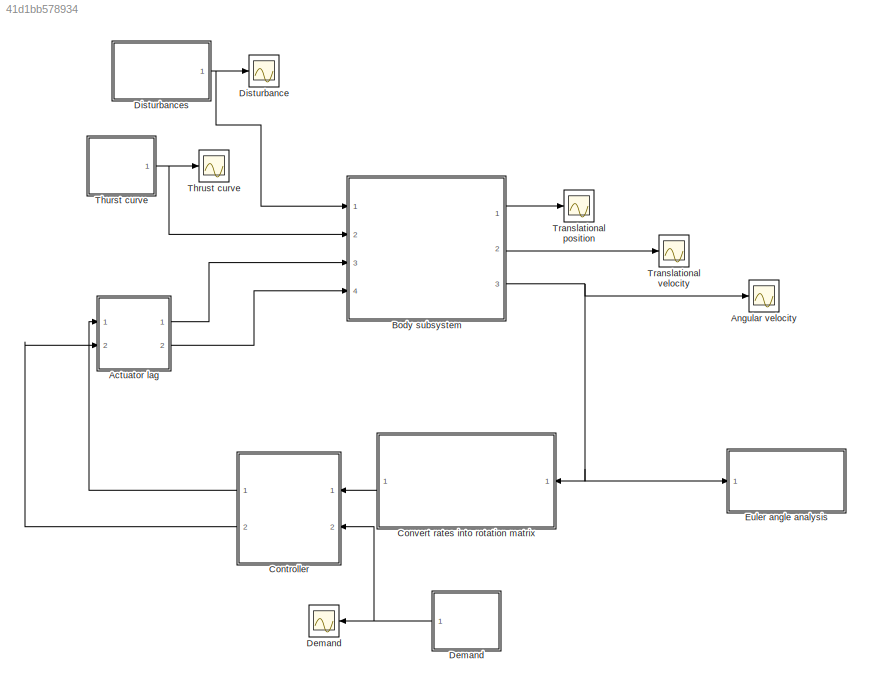
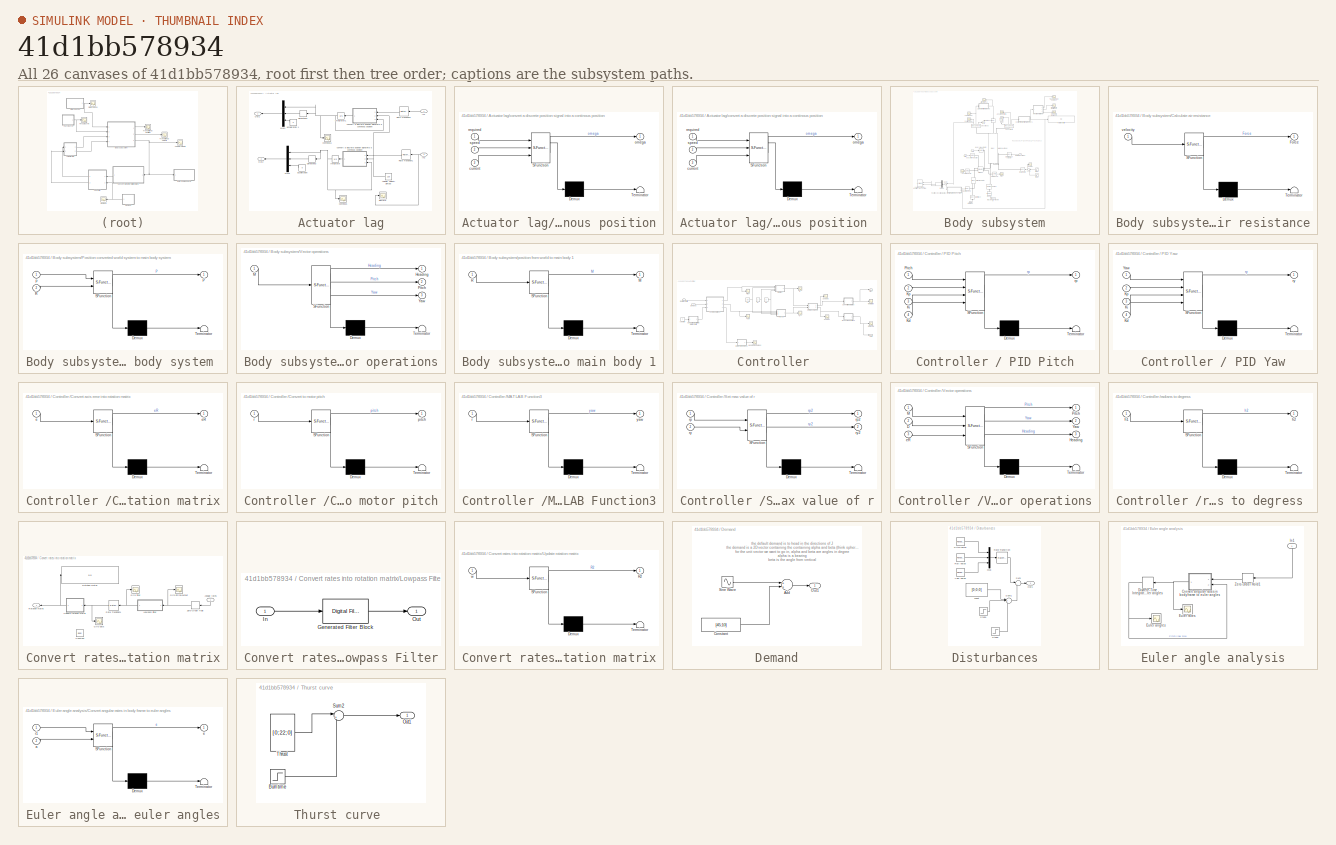
[diagram: thumbnail index - all 26 canvases of the model, root first then tree order]
MODEL slx_41d1bb578934
KIND model
BLOCK [SubSystem] Actuator lag
  FunctionWithSeparateData = off
  MaskHideContents = off
  MinAlgLoopOccurrences = off
  Opaque = off
  Ports = [2, 2]
  PropExecContextOutsideSubsystem = off
  RTWSystemCode = Auto
  RequestExecContextInheritance = off
BLOCK [Constant] Actuator lag/Angular velocity gimbal 
  Value = 1.06
BLOCK [Derivative] Actuator lag/Derivative1
BLOCK [Derivative] Actuator lag/Derivative3
BLOCK [Inport] Actuator lag/In1
  IconDisplay = Port number
BLOCK [Inport] Actuator lag/In2
  IconDisplay = Port number
  Port = 2
BLOCK [Integrator] Actuator lag/Integrator
  Ports = [1, 1]
BLOCK [Integrator] Actuator lag/Integrator1
  Ports = [1, 1]
BLOCK [Mux] Actuator lag/Mux1
  DisplayOption = bar
  Inputs = 3
  Ports = [3, 1]
BLOCK [Mux] Actuator lag/Mux3
  DisplayOption = bar
  Inputs = 3
  Ports = [3, 1]
BLOCK [Outport] Actuator lag/Out1
  IconDisplay = Port number
BLOCK [Outport] Actuator lag/Out2
  IconDisplay = Port number
  Port = 2
BLOCK [RateTransition] Actuator lag/Rate Transition1
  Deterministic = off
  OutPortSampleTime = 0
BLOCK [RateTransition] Actuator lag/Rate Transition2
  Deterministic = off
  OutPortSampleTime = 0
BLOCK [Constant] Actuator lag/acceleration 
  Value = 0
BLOCK [Constant] Actuator lag/acceleration 1
  Value = 0
BLOCK [Scope] Actuator lag/continous
  DataFormat = StructureWithTime
  Floating = off
  LimitDataPoints = off
  NumInputPorts = 1
  Ports = [1]
  SampleTime = 0
  SaveName = ScopeData5
  ShowLegends = off
  TimeRange = 5
  YMax = 0.06
  YMin = -0.06
BLOCK [Scope] Actuator lag/continous1
  DataFormat = StructureWithTime
  Floating = off
  LimitDataPoints = off
  NumInputPorts = 1
  Ports = [1]
  SampleTime = 0
  SaveName = ScopeData33
  ShowLegends = off
  TimeRange = 5
  YMax = 0.06
  YMin = -0.06
BLOCK [SubSystem] Actuator lag/convert a discrete position signal into a continous position
  ErrorFcn = Stateflow.Translate.translate
  FunctionWithSeparateData = off
  MaskHideContents = off
  MinAlgLoopOccurrences = off
  Opaque = off
  PermitHierarchicalResolution = ExplicitOnly
  Ports = [3, 1]
  PropExecContextOutsideSubsystem = off
  RTWSystemCode = Auto
  RequestExecContextInheritance = off
  SFBlockType = MATLAB Function
  TreatAsAtomicUnit = on
BLOCK [SubSystem] Actuator lag/convert a discrete position signal into a continous position 
  ErrorFcn = Stateflow.Translate.translate
  FunctionWithSeparateData = off
  MaskHideContents = off
  MinAlgLoopOccurrences = off
  Opaque = off
  PermitHierarchicalResolution = ExplicitOnly
  Ports = [3, 1]
  PropExecContextOutsideSubsystem = off
  RTWSystemCode = Auto
  RequestExecContextInheritance = off
  SFBlockType = MATLAB Function
  TreatAsAtomicUnit = on
BLOCK [Demux] Actuator lag/convert a discrete position signal into a continous position / Demux 
  Outputs = 1
  Ports = [1, 1]
BLOCK [S-Function] Actuator lag/convert a discrete position signal into a continous position / SFunction 
  EnableBusSupport = on
  FunctionName = sf_sfun
  PortCounts = [3 2]
  Ports = [3, 2]
  Tag = Stateflow S-Function rocket3 7
BLOCK [Terminator] Actuator lag/convert a discrete position signal into a continous position / Terminator 
BLOCK [Inport] Actuator lag/convert a discrete position signal into a continous position /current
  IconDisplay = Port number
  Port = 3
BLOCK [Outport] Actuator lag/convert a discrete position signal into a continous position /omega
  IconDisplay = Port number
BLOCK [Inport] Actuator lag/convert a discrete position signal into a continous position /required
  IconDisplay = Port number
BLOCK [Inport] Actuator lag/convert a discrete position signal into a continous position /speed
  IconDisplay = Port number
  Port = 2
BLOCK [Demux] Actuator lag/convert a discrete position signal into a continous position/ Demux 
  Outputs = 1
  Ports = [1, 1]
BLOCK [S-Function] Actuator lag/convert a discrete position signal into a continous position/ SFunction 
  EnableBusSupport = on
  FunctionName = sf_sfun
  PortCounts = [3 2]
  Ports = [3, 2]
  Tag = Stateflow S-Function rocket3 8
BLOCK [Terminator] Actuator lag/convert a discrete position signal into a continous position/ Terminator 
BLOCK [Inport] Actuator lag/convert a discrete position signal into a continous position/current
  IconDisplay = Port number
  Port = 3
BLOCK [Outport] Actuator lag/convert a discrete position signal into a continous position/omega
  IconDisplay = Port number
BLOCK [Inport] Actuator lag/convert a discrete position signal into a continous position/required
  IconDisplay = Port number
BLOCK [Inport] Actuator lag/convert a discrete position signal into a continous position/speed
  IconDisplay = Port number
  Port = 2
BLOCK [Scope] Actuator lag/discrete
  DataFormat = StructureWithTime
  Floating = off
  NumInputPorts = 1
  Ports = [1]
  SampleTime = 0
  SaveName = ScopeData4
  ShowLegends = off
  YMax = 0.056213
  YMin = 0.0562129
BLOCK [Scope] Angular velocity
  DataFormat = StructureWithTime
  Floating = off
  LimitDataPoints = off
  NumInputPorts = 1
  Ports = [1]
  SampleTime = 0
  SaveName = ScopeData2
  ShowLegends = on
  YMax = 0.75
  YMin = -1.75
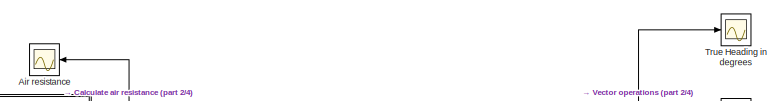
[diagram: Body subsystem - part 1/4, top center region]
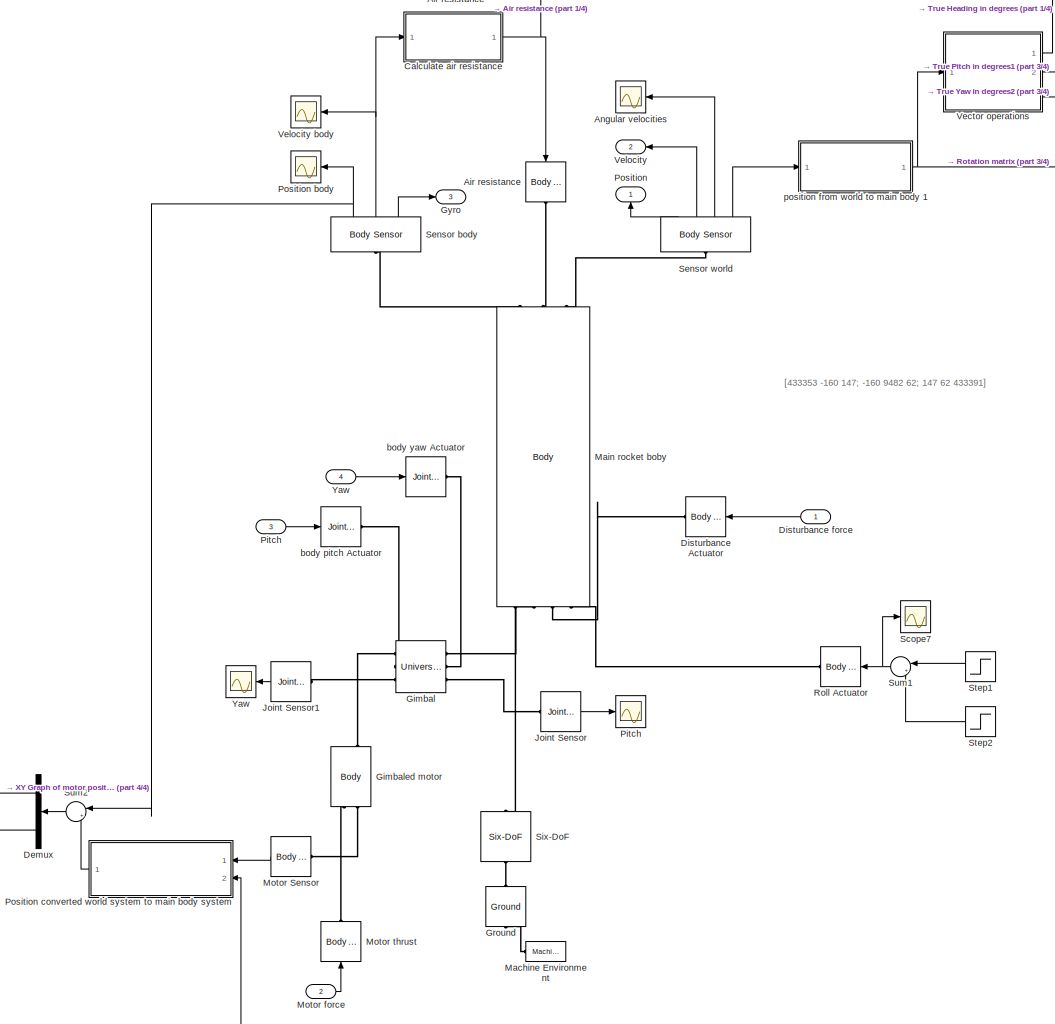
[diagram: Body subsystem - part 2/4, center side, full height]
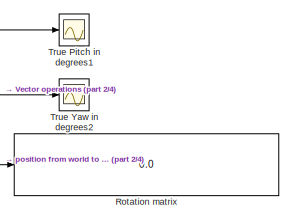
[diagram: Body subsystem - part 3/4, top right region]
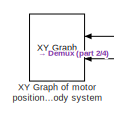
[diagram: Body subsystem - part 4/4, bottom left region]
BLOCK [SubSystem] Body subsystem
  FunctionWithSeparateData = off
  MaskHideContents = off
  MinAlgLoopOccurrences = off
  Opaque = off
  Ports = [4, 3]
  PropExecContextOutsideSubsystem = off
  RTWSystemCode = Auto
  RequestExecContextInheritance = off
BLOCK [Reference] Body subsystem/Air resistance  REF=mblibv1/Sensors & 
Actuators/Body Actuator
  AccelerationUnits = m/s^2
  ActiveIO = on
  ActuationStyle = Force
  Angle = off
  AngleUnits = deg
  ArcAccelerationUnits = deg/s^2
  ArcVelocityUnits = deg/s
  ClassName = BodyActuatorForceTorque
  CoordPosition = on
  CoordPositionUnits = m
  DialogClass = MechanicalActuatorBlock
  Force = on
  ForceUnits = N
  PhysicalDomain = Mechanical
  PortType = blob
  Ports = [1, 0, 0, 0, 0, 0, 1]
  ReferenceFrame = Local (Body CS)
  SourceBlock = mblibv1/Sensors & \nActuators/Body Actuator
  SourceType = Body Actuator
  Torque = off
  TorqueUnits = N*m
  UpdateFromCAD = off
  VelocityUnits = m/s
  Width = 3
BLOCK [Scope] Body subsystem/Air resistance 
  DataFormat = StructureWithTime
  Floating = off
  LegendLocations = 0.58434     0.81259     0.35484       0.109
  NumInputPorts = 1
  Ports = [1]
  SampleTime = 0
  SaveName = ScopeData11
  ShowLegends = on
  YMax = 375
  YMin = 0
  ZoomMode = xonly
BLOCK [Scope] Body subsystem/Angular velocities
  DataFormat = StructureWithTime
  Floating = off
  NumInputPorts = 1
  Ports = [1]
  SampleTime = 0
  SaveName = ScopeData20
  ShowLegends = off
  YMax = 375
  YMin = 0
  ZoomMode = yonly
BLOCK [SubSystem] Body subsystem/Calculate air resistance
  ErrorFcn = Stateflow.Translate.translate
  FunctionWithSeparateData = off
  MaskHideContents = off
  MinAlgLoopOccurrences = off
  Opaque = off
  PermitHierarchicalResolution = ExplicitOnly
  Ports = [1, 1]
  PropExecContextOutsideSubsystem = off
  RTWSystemCode = Auto
  RequestExecContextInheritance = off
  SFBlockType = MATLAB Function
  TreatAsAtomicUnit = on
BLOCK [Demux] Body subsystem/Calculate air resistance/ Demux 
  Outputs = 1
  Ports = [1, 1]
BLOCK [S-Function] Body subsystem/Calculate air resistance/ SFunction 
  EnableBusSupport = on
  FunctionName = sf_sfun
  PortCounts = [1 2]
  Ports = [1, 2]
  Tag = Stateflow S-Function rocket3 2
BLOCK [Terminator] Body subsystem/Calculate air resistance/ Terminator 
BLOCK [Outport] Body subsystem/Calculate air resistance/Force
  IconDisplay = Port number
BLOCK [Inport] Body subsystem/Calculate air resistance/velocity
  IconDisplay = Port number
BLOCK [Demux] Body subsystem/Demux
  DisplayOption = bar
  Outputs = 3
  Ports = [1, 3]
BLOCK [Reference] Body subsystem/Disturbance Actuator  REF=mblibv1/Sensors & 
Actuators/Body Actuator
  AccelerationUnits = m/s^2
  ActiveIO = on
  ActuationStyle = Force
  Angle = off
  AngleUnits = deg
  ArcAccelerationUnits = deg/s^2
  ArcVelocityUnits = deg/s
  ClassName = BodyActuatorForceTorque
  CoordPosition = on
  CoordPositionUnits = m
  DialogClass = MechanicalActuatorBlock
  Force = off
  ForceUnits = N
  PhysicalDomain = Mechanical
  PortType = blob
  Ports = [1, 0, 0, 0, 0, 0, 1]
  ReferenceFrame = Local (Body CS)
  SourceBlock = mblibv1/Sensors & \nActuators/Body Actuator
  SourceType = Body Actuator
  Torque = on
  TorqueUnits = N*m
  UpdateFromCAD = off
  VelocityUnits = m/s
  Width = 3
BLOCK [Inport] Body subsystem/Disturbance force
  IconDisplay = Port number
BLOCK [Reference] Body subsystem/Gimbal  REF=mblibv1/Joints/Universal
  ClassName = Joint
  CutJoint = off
  DialogClass = JointBlock
  LConnTagsString = __newl0|SA1|SA2
  MarkAsCut = off
  NumSAPorts = 4
  Ports = [0, 0, 0, 0, 0, 3, 3]
  PrimitiveProps = R1$Base$[1 0 0]$revolute#R2$Base$[0 0 1]$revolute
  Primitives = prismatic
  R1Axis = [1 0 0]
  R2Axis = [0 0 1]
  RConnTagsString = __newr0|SA1|SA2
  SourceBlock = mblibv1/Joints/Universal
  SourceType = Universal
  UpdateFromCAD = off
BLOCK [Reference] Body subsystem/Gimbaled motor  REF=mblibv1/Bodies/Body
  AttachedToCS = CG
  BodyColor = [1 0 0]
  BodyColorSelMode = MACHINE_DEFAULT
  CG = Right$CG$[0 -7.4 0]$CS3$CS3$cm$[0 0 0]$Euler X-Y-Z$deg$CS3$true$none
  CGPos = [0 -7.4 0]
  CGRot = [0 0 0]
  CS0Pos = []
  CS0Rot = []
  CS10Pos = []
  CS10Rot = []
  CS11Pos = []
  CS11Rot = []
  CS12Pos = []
  CS12Rot = []
  CS13Pos = []
  CS13Rot = []
  CS14Pos = []
  CS14Rot = []
  CS15Pos = []
  CS15Rot = []
  CS16Pos = []
  CS16Rot = []
  CS17Pos = []
  CS17Rot = []
  CS18Pos = []
  CS18Rot = []
  CS19Pos = []
  CS19Rot = []
  CS1Pos = [0 -17 0]
  CS1Rot = [0 0 0]
  CS20Pos = []
  CS20Rot = []
  CS2Pos = [0 -17 0]
  CS2Rot = [0 0 0]
  CS3Pos = [0 0 0]
  CS3Rot = [0 0 0]
  CS4Pos = []
  CS4Rot = []
  CS5Pos = []
  CS5Rot = []
  CS6Pos = []
  CS6Rot = []
  CS7Pos = []
  CS7Rot = []
  CS8Pos = []
  CS8Rot = []
  CS9Pos = []
  CS9Rot = []
  ClassName = Body
  Density = 1
  DensityUnits = kg/m^3
  DensityUse = false
  DialogClass = MechanicalBodyBlock
  GraphicsMode = MACHINE_DEFAULT
  Inertia = [4360 -2 0; -2 194 -11; 0 -11 4360]
  InertiaUnits = g*cm^2
  LConnTagsString = CS1|CS2
  Mass = 0.150
  MassUnits = kg
  Ports = [0, 0, 0, 0, 0, 2, 2]
  RConnTagsString = CG|CS3
  Shape = Cylinder
  ShapeDims = [1 1]
  ShapeUnits = m
  ShapeUse = false
  SourceBlock = mblibv1/Bodies/Body
  SourceType = Body
  UpdateFromCAD = off
  WorkingFrames = Left$CS1$[0 -17 0]$CS3$CS3$cm$[0 0 0]$Euler X-Y-Z$deg$CS3$true$none#Left$CS2$[0 -17 0]$CS3$CS3$cm$[0 0 0]$Euler X-Y-Z$deg$CS3$true$none#Right$CS3$[0 0 0]$Adjoining$Adjoining$cm$[0 0 0]$Euler X-Y-Z$deg$Adjoining$true$none
BLOCK [Reference] Body subsystem/Ground  REF=mblibv1/Bodies/Ground
  ClassName = Ground
  CoordPosition = [0 0 0]
  CoordPositionUnits = m
  DialogClass = GroundBlock
  LeftPortType = env
  MachineId = [1 0]
  ParameterChecksum = [1531356485, 1370758385, 3185728975, 3446438402]
  PhysicalDomain = Mechanical
  Ports = [0, 0, 0, 0, 0, 1, 1]
  RightPortType = workingframe
  ShowEnvPort = on
  SourceBlock = mblibv1/Bodies/Ground
  SourceType = Ground
  StateVectorMgrId = 0
  TopologyChecksum = [647872074, 1732849943, 2491880305, 2574856867]
  UpdateFromCAD = off
  UserDataPersistent = on
BLOCK [Outport] Body subsystem/Gyro
  IconDisplay = Port number
  Port = 3
BLOCK [Reference] Body subsystem/Joint Sensor  REF=mblibv1/Sensors & 
Actuators/Joint Sensor
  Acceleration = off
  AccelerationUnits = m/s^2
  ActiveIO = on
  Angle = on
  AngleUnits = deg
  ArcAcceleration = off
  ArcAccelerationUnits = deg/s^2
  ArcVelocity = off
  ArcVelocityUnits = deg/s
  ClassName = JointSensor
  CoordPosition = on
  CoordPositionUnits = m
  DialogClass = MechanicalSensorBlock
  Force = off
  ForceUnits = N
  Muxed = on
  OutputVector = [1]
  PhysicalDomain = Mechanical
  PortType = blob
  Ports = [0, 1, 0, 0, 0, 1]
  Pose = off
  Primitive = R1
  Quaternion = on
  QuaternionDDT = off
  QuaternionDT = off
  QuaternionUnits = off
  ReactionForce = off
  ReactionForceUnits = N
  ReactionMoment = off
  ReactionMomentUnits = N*m
  ReactionReferenceFrame = Local (Body CS)
  ReactionSensedSide = Base
  ReferenceFrame = Absolute (World)
  SourceBlock = mblibv1/Sensors & \nActuators/Joint Sensor
  SourceType = Joint Sensor
  Torque = off
  TorqueUnits = N*m
  UpdateFromCAD = off
  Velocity = off
  VelocityUnits = m/s
  Width = 1
BLOCK [Reference] Body subsystem/Joint Sensor1  REF=mblibv1/Sensors & 
Actuators/Joint Sensor
  Acceleration = off
  AccelerationUnits = m/s^2
  ActiveIO = on
  Angle = on
  AngleUnits = deg
  ArcAcceleration = off
  ArcAccelerationUnits = deg/s^2
  ArcVelocity = off
  ArcVelocityUnits = deg/s
  ClassName = JointSensor
  CoordPosition = on
  CoordPositionUnits = m
  DialogClass = MechanicalSensorBlock
  Force = off
  ForceUnits = N
  Muxed = off
  OutputVector = [1]
  PhysicalDomain = Mechanical
  PortType = blob
  Ports = [0, 1, 0, 0, 0, 1]
  Pose = off
  Primitive = R2
  Quaternion = on
  QuaternionDDT = off
  QuaternionDT = off
  QuaternionUnits = off
  ReactionForce = off
  ReactionForceUnits = N
  ReactionMoment = off
  ReactionMomentUnits = N*m
  ReactionReferenceFrame = Local (Body CS)
  ReactionSensedSide = Base
  ReferenceFrame = Absolute (World)
  SourceBlock = mblibv1/Sensors & \nActuators/Joint Sensor
  SourceType = Joint Sensor
  Torque = off
  TorqueUnits = N*m
  UpdateFromCAD = off
  Velocity = off
  VelocityUnits = m/s
  Width = 1
BLOCK [Reference] Body subsystem/Machine Environment  REF=mblibv1/Bodies/Machine
Environment
  AnalysisType = Forward dynamics
  AngularAssemblyTolerance = 1e-3
  AngularAssemblyToleranceUnits = rad
  BodyColorSelMode = Use model default
  BodyVisualizationType = Use model default body geometries
  ClassName = Environment
  ConstraintAbsTolerance = 1e-4
  ConstraintRelTolerance = 1e-4
  ConstraintSolverType = Stabilizing
  DefaultBodyColor = [1 0 0]
  DialogTemplateClass = MECH.MachineEnvironment
  Dimensionality = Auto-detect
  Gravity = [0 -9.81 0]
  GravityAsSignal = off
  GravityUnits = m/s^2
  LinearAssemblyTolerance = 1e-3
  LinearAssemblyToleranceUnits = m
  PerturbationSize = 1e-5
  PhysicalDomain = Mechanical
  PortType = env
  Ports = [0, 0, 0, 0, 0, 0, 1]
  RedundancyAnalysisTolerance = 1e-14
  RedundancyAnalysisToleranceType = Automatically select tolerance
  SourceBlock = mblibv1/Bodies/Machine\nEnvironment
  SourceType = Machine Environment
  StatePerturbationType = Fixed
  SyncWhenCopied = off
  UseRobustSingularityHandling = off
  VisualizeMachine = on
BLOCK [Reference] Body subsystem/Main rocket boby  REF=mblibv1/Bodies/Body
  AttachedToCS = CG
  BodyColor = [1 0 0]
  BodyColorSelMode = MACHINE_DEFAULT
  CG = Left$CG$[0 39.4 0]$WORLD$WORLD$cm$[0 0 0]$Euler X-Y-Z$deg$World$true$none
  CGPos = [0 39.4 0]
  CGRot = [0 0 0]
  CS0Pos = []
  CS0Rot = []
  CS10Pos = []
  CS10Rot = []
  CS11Pos = []
  CS11Rot = []
  CS12Pos = []
  CS12Rot = []
  CS13Pos = []
  CS13Rot = []
  CS14Pos = []
  CS14Rot = []
  CS15Pos = []
  CS15Rot = []
  CS16Pos = []
  CS16Rot = []
  CS17Pos = []
  CS17Rot = []
  CS18Pos = []
  CS18Rot = []
  CS19Pos = []
  CS19Rot = []
  CS1Pos = [0 5 0]
  CS1Rot = [0 0 0]
  CS20Pos = []
  CS20Rot = []
  CS2Pos = [0 30 0]
  CS2Rot = [0 0 0]
  CS3Pos = [0 0 0]
  CS3Rot = [0 0 0]
  CS4Pos = [0 0 0]
  CS4Rot = [0 0 0]
  CS5Pos = [0 -21.6 0]
  CS5Rot = [0 0 0]
  CS6Pos = [0 0 0]
  CS6Rot = [0 0 0]
  CS7Pos = []
  CS7Rot = []
  CS8Pos = []
  CS8Rot = []
  CS9Pos = []
  CS9Rot = []
  ClassName = Body
  Density = 1
  DensityUnits = kg/m^3
  DensityUse = false
  DialogClass = MechanicalBodyBlock
  GraphicsMode = MACHINE_DEFAULT
  Inertia = [433370 -160 147; -160 9482 62; 147 62 433370]
  InertiaUnits = g*cm^2
  LConnTagsString = CG|CS5|CS1|CS6
  Mass = 1
  MassUnits = kg
  Ports = [0, 0, 0, 0, 0, 4, 3]
  RConnTagsString = CS3|CS2|CS4
  Shape = Cylinder
  ShapeDims = [1 1]
  ShapeUnits = m
  ShapeUse = false
  SourceBlock = mblibv1/Bodies/Body
  SourceType = Body
  UpdateFromCAD = off
  WorkingFrames = Left$CS5$[0 -21.6 0]$CG$CG$cm$[0 0 0]$Euler X-Y-Z$deg$CG$true$none#Left$CS1$[0 5 0]$CG$CG$cm$[0 0 0]$Euler X-Y-Z$deg$CG$true$none#Right$CS3$[0 0 0]$CG$CG$cm$[0 0 0]$Euler X-Y-Z$deg$CG$true$none#Right$CS2$[0 30 0]$CG$CG$cm$[0 0 0]$Euler X-Y-Z$deg$CG$true$none#Right$CS4$[0 0 0]$CG$CG$cm$[0 0 0]$Euler X-Y-Z$deg$CG$true$none#Left$CS6$[0 0 0]$CG$CG$cm$[0 0 0]$Euler X-Y-Z$deg$CG$true$none
BLOCK [Reference] Body subsystem/Motor Sensor  REF=mblibv1/Sensors & 
Actuators/Body Sensor
  Acceleration = off
  AccelerationUnits = m/s^2
  ActiveIO = on
  Angle = on
  AngleUnits = deg
  ArcAcceleration = off
  ArcAccelerationUnits = deg/s^2
  ArcVelocity = off
  ArcVelocityUnits = deg/s
  ClassName = BodySensor
  CoordPosition = on
  CoordPositionUnits = m
  DialogClass = MechanicalSensorBlock
  Muxed = off
  OutputVector = [1]
  PhysicalDomain = Mechanical
  PortType = blob
  Ports = [0, 1, 0, 0, 0, 1]
  Pose = off
  Quaternion = on
  QuaternionDDT = off
  QuaternionDT = off
  QuaternionUnits = off
  ReferenceFrame = Absolute (World)
  SourceBlock = mblibv1/Sensors & \nActuators/Body Sensor
  SourceType = Body Sensor
  UpdateFromCAD = off
  Velocity = off
  VelocityUnits = m/s
  Width = 3
BLOCK [Inport] Body subsystem/Motor force
  IconDisplay = Port number
  Port = 2
BLOCK [Reference] Body subsystem/Motor thrust  REF=mblibv1/Sensors & 
Actuators/Body Actuator
  AccelerationUnits = m/s^2
  ActiveIO = on
  ActuationStyle = Force
  Angle = off
  AngleUnits = deg
  ArcAccelerationUnits = deg/s^2
  ArcVelocityUnits = deg/s
  ClassName = BodyActuatorForceTorque
  CoordPosition = on
  CoordPositionUnits = m
  DialogClass = MechanicalActuatorBlock
  Force = on
  ForceUnits = N
  PhysicalDomain = Mechanical
  PortType = blob
  Ports = [1, 0, 0, 0, 0, 0, 1]
  ReferenceFrame = Local (Body CS)
  SourceBlock = mblibv1/Sensors & \nActuators/Body Actuator
  SourceType = Body Actuator
  Torque = off
  TorqueUnits = N*m
  UpdateFromCAD = off
  VelocityUnits = m/s
  Width = 3
BLOCK [Inport] Body subsystem/Pitch
  IconDisplay = Port number
  Port = 3
BLOCK [Scope] Body subsystem/Pitch 
  DataFormat = StructureWithTime
  Floating = off
  LimitDataPoints = off
  NumInputPorts = 1
  Ports = [1]
  SampleTime = 0
  SaveName = ScopeData9
  ShowLegends = off
  ZoomMode = yonly
BLOCK [Outport] Body subsystem/Position
  IconDisplay = Port number
BLOCK [Scope] Body subsystem/Position body
  DataFormat = StructureWithTime
  Floating = off
  NumInputPorts = 1
  Ports = [1]
  SampleTime = 0
  SaveName = ScopeData22
  ShowLegends = off
  YMax = 375
  YMin = 0
BLOCK [SubSystem] Body subsystem/Position converted world system to main body system 
  ErrorFcn = Stateflow.Translate.translate
  FunctionWithSeparateData = off
  MaskHideContents = off
  MinAlgLoopOccurrences = off
  Opaque = off
  PermitHierarchicalResolution = ExplicitOnly
  Ports = [2, 1]
  PropExecContextOutsideSubsystem = off
  RTWSystemCode = Auto
  RequestExecContextInheritance = off
  SFBlockType = MATLAB Function
  TreatAsAtomicUnit = on
BLOCK [Demux] Body subsystem/Position converted world system to main body system / Demux 
  Outputs = 1
  Ports = [1, 1]
BLOCK [S-Function] Body subsystem/Position converted world system to main body system / SFunction 
  EnableBusSupport = on
  FunctionName = sf_sfun
  PortCounts = [2 2]
  Ports = [2, 2]
  Tag = Stateflow S-Function rocket3 1
BLOCK [Terminator] Body subsystem/Position converted world system to main body system / Terminator 
BLOCK [Outport] Body subsystem/Position converted world system to main body system /P
  IconDisplay = Port number
BLOCK [Inport] Body subsystem/Position converted world system to main body system /R
  IconDisplay = Port number
  Port = 2
BLOCK [Inport] Body subsystem/Position converted world system to main body system /p
  IconDisplay = Port number
BLOCK [Reference] Body subsystem/Roll  Actuator  REF=mblibv1/Sensors & 
Actuators/Body Actuator
  AccelerationUnits = m/s^2
  ActiveIO = on
  ActuationStyle = Force
  Angle = off
  AngleUnits = deg
  ArcAccelerationUnits = deg/s^2
  ArcVelocityUnits = deg/s
  ClassName = BodyActuatorForceTorque
  CoordPosition = on
  CoordPositionUnits = m
  DialogClass = MechanicalActuatorBlock
  Force = off
  ForceUnits = N
  PhysicalDomain = Mechanical
  PortType = blob
  Ports = [1, 0, 0, 0, 0, 0, 1]
  ReferenceFrame = Local (Body CS)
  SourceBlock = mblibv1/Sensors & \nActuators/Body Actuator
  SourceType = Body Actuator
  Torque = on
  TorqueUnits = N*m
  UpdateFromCAD = off
  VelocityUnits = m/s
  Width = 3
BLOCK [Display] Body subsystem/Rotation matrix
  Decimation = 1
  Ports = [1]
BLOCK [Scope] Body subsystem/Scope7
  DataFormat = StructureWithTime
  Floating = off
  LegendLocations = 0.74966     0.81259     0.18952       0.109
  LimitDataPoints = off
  NumInputPorts = 1
  Ports = [1]
  SampleTime = 0
  SaveName = ScopeData27
  ShowLegends = on
  YMax = 375
  YMin = 0
  ZoomMode = xonly
BLOCK [Reference] Body subsystem/Sensor body  REF=mblibv1/Sensors & 
Actuators/Body Sensor
  Acceleration = off
  AccelerationUnits = m/s^2
  ActiveIO = on
  Angle = on
  AngleUnits = deg
  ArcAcceleration = off
  ArcAccelerationUnits = deg/s^2
  ArcVelocity = on
  ArcVelocityUnits = rad/s
  ClassName = BodySensor
  CoordPosition = on
  CoordPositionUnits = m
  DialogClass = MechanicalSensorBlock
  Muxed = off
  OutputVector = [1]
  PhysicalDomain = Mechanical
  PortType = blob
  Ports = [0, 3, 0, 0, 0, 1]
  Pose = off
  Quaternion = on
  QuaternionDDT = off
  QuaternionDT = off
  QuaternionUnits = off
  ReferenceFrame = Local (Body CS)
  SourceBlock = mblibv1/Sensors & \nActuators/Body Sensor
  SourceType = Body Sensor
  UpdateFromCAD = off
  Velocity = on
  VelocityUnits = m/s
  Width = 9
BLOCK [Reference] Body subsystem/Sensor world  REF=mblibv1/Sensors & 
Actuators/Body Sensor
  Acceleration = off
  AccelerationUnits = m/s^2
  ActiveIO = on
  Angle = on
  AngleUnits = deg
  ArcAcceleration = off
  ArcAccelerationUnits = deg/s^2
  ArcVelocity = on
  ArcVelocityUnits = rad/s
  ClassName = BodySensor
  CoordPosition = on
  CoordPositionUnits = m
  DialogClass = MechanicalSensorBlock
  Muxed = off
  OutputVector = [1]
  PhysicalDomain = Mechanical
  PortType = blob
  Ports = [0, 4, 0, 0, 0, 1]
  Pose = on
  Quaternion = on
  QuaternionDDT = off
  QuaternionDT = off
  QuaternionUnits = off
  ReferenceFrame = Absolute (World)
  SourceBlock = mblibv1/Sensors & \nActuators/Body Sensor
  SourceType = Body Sensor
  UpdateFromCAD = off
  Velocity = on
  VelocityUnits = m/s
  Width = 18
BLOCK [Reference] Body subsystem/Six-DoF  REF=mblibv1/Joints/Six-DoF
  ClassName = Joint
  CutJoint = off
  DialogClass = JointBlock
  LConnTagsString = __newl0
  MarkAsCut = off
  NumSAPorts = 0
  P1Axis = [1 0 0]
  P2Axis = [0 1 0]
  P3Axis = [0 0 1]
  Ports = [0, 0, 0, 0, 0, 1, 1]
  PrimitiveProps = P1$World$[1 0 0]$prismatic#P2$World$[0 1 0]$prismatic#P3$World$[0 0 1]$prismatic#S$World$[0 0 0]$spherical
  Primitives = prismatic_prismatic
  RConnTagsString = __newr0
  SAxis = [0 0 0]
  SourceBlock = mblibv1/Joints/Six-DoF
  SourceType = Six-DoF
  UpdateFromCAD = off
BLOCK [Step] Body subsystem/Step1
  After = [0,0,0]
  Before = [0,0,0]
  SampleTime = 0
  Time = [2,1,2]
  VectorParams1D = off
BLOCK [Step] Body subsystem/Step2
  After = [0,0, 0]
  Before = [0,0,0]
  SampleTime = 0
  Time = [2.0,1.01, 2.0]
  VectorParams1D = off
BLOCK [Sum] Body subsystem/Sum1
  IconShape = round
  InputSameDT = off
  Inputs = |++
  OutDataTypeStr = Inherit: Inherit via internal rule
  Ports = [2, 1]
  SaturateOnIntegerOverflow = off
BLOCK [Sum] Body subsystem/Sum2
  IconShape = round
  InputSameDT = off
  Inputs = |+-
  OutDataTypeStr = Inherit: Inherit via internal rule
  Ports = [2, 1]
  SaturateOnIntegerOverflow = off
BLOCK [Scope] Body subsystem/True Heading in degrees
  DataFormat = StructureWithTime
  Floating = off
  LimitDataPoints = off
  NumInputPorts = 1
  Ports = [1]
  SampleTime = 0
  SaveName = ScopeData26
  ShowLegends = off
  YMax = 60
  YMin = 0
BLOCK [Scope] Body subsystem/True Pitch in degrees1
  DataFormat = StructureWithTime
  Floating = off
  LimitDataPoints = off
  NumInputPorts = 1
  Ports = [1]
  SampleTime = 0
  SaveName = ScopeData12
  ShowLegends = off
  YMax = 1.00025
  YMin = 0.99675
BLOCK [Scope] Body subsystem/True Yaw in degrees2
  DataFormat = StructureWithTime
  Floating = off
  LimitDataPoints = off
  NumInputPorts = 1
  Ports = [1]
  SampleTime = 0
  SaveName = ScopeData32
  ShowLegends = off
  YMax = 1.00025
  YMin = 0.99675
BLOCK [SubSystem] Body subsystem/Vector operations
  ErrorFcn = Stateflow.Translate.translate
  FunctionWithSeparateData = off
  MaskHideContents = off
  MinAlgLoopOccurrences = off
  Opaque = off
  PermitHierarchicalResolution = ExplicitOnly
  Ports = [1, 3]
  PropExecContextOutsideSubsystem = off
  RTWSystemCode = Auto
  RequestExecContextInheritance = off
  SFBlockType = MATLAB Function
  TreatAsAtomicUnit = on
BLOCK [Demux] Body subsystem/Vector operations/ Demux 
  Outputs = 1
  Ports = [1, 1]
BLOCK [S-Function] Body subsystem/Vector operations/ SFunction 
  EnableBusSupport = on
  FunctionName = sf_sfun
  PortCounts = [1 4]
  Ports = [1, 4]
  Tag = Stateflow S-Function rocket3 6
BLOCK [Terminator] Body subsystem/Vector operations/ Terminator 
BLOCK [Outport] Body subsystem/Vector operations/Heading
  IconDisplay = Port number
BLOCK [Inport] Body subsystem/Vector operations/M
  IconDisplay = Port number
BLOCK [Outport] Body subsystem/Vector operations/Pitch
  IconDisplay = Port number
  Port = 2
BLOCK [Outport] Body subsystem/Vector operations/Yaw
  IconDisplay = Port number
  Port = 3
BLOCK [Outport] Body subsystem/Velocity
  IconDisplay = Port number
  Port = 2
BLOCK [Scope] Body subsystem/Velocity body
  DataFormat = StructureWithTime
  Floating = off
  LegendLocations = 0.66297     0.81259     0.27621       0.109
  NumInputPorts = 1
  Ports = [1]
  SampleTime = 0
  SaveName = ScopeData21
  ShowLegends = on
  YMax = 375
  YMin = 0
  ZoomMode = yonly
BLOCK [Reference] Body subsystem/XY Graph of motor position relative to body system  REF=simulink/Sinks/XY Graph
  Ports = [2]
  SourceBlock = simulink/Sinks/XY Graph
  SourceType = XY scope.
  st = -1
  xmax = 0.02
  xmin = -0.02
  ymax = 0.02
  ymin = -0.02
BLOCK [Inport] Body subsystem/Yaw
  IconDisplay = Port number
  Port = 4
BLOCK [Scope] Body subsystem/Yaw 
  DataFormat = StructureWithTime
  Floating = off
  LimitDataPoints = off
  NumInputPorts = 1
  Ports = [1]
  SampleTime = 0
  SaveName = ScopeData14
  ShowLegends = off
  ZoomMode = yonly
BLOCK [Reference] Body subsystem/body pitch Actuator  REF=mblibv1/Sensors & 
Actuators/Joint Actuator
  AccelerationUnits = m/s^2
  ActiveIO = on
  ActuationStyle = Motion
  AngleUnits = rad
  ArcAccelerationUnits = rad/s^2
  ArcVelocityUnits = rad/s
  ClassName = JointActuator
  CoordPositionUnits = m
  DialogClass = MechanicalActuatorBlock
  ForceUnits = N
  PhysicalDomain = Mechanical
  PortType = blob
  Ports = [1, 0, 0, 0, 0, 0, 1]
  Primitive = R1
  ReferenceFrame = Absolute (World)
  SourceBlock = mblibv1/Sensors & \nActuators/Joint Actuator
  SourceType = Joint Actuator
  TorqueUnits = N*m
  UpdateFromCAD = off
  VelocityUnits = m/s
  Width = 3
BLOCK [Reference] Body subsystem/body yaw Actuator  REF=mblibv1/Sensors & 
Actuators/Joint Actuator
  AccelerationUnits = m/s^2
  ActiveIO = on
  ActuationStyle = Motion
  AngleUnits = rad
  ArcAccelerationUnits = rad/s^2
  ArcVelocityUnits = rad/s
  ClassName = JointActuator
  CoordPositionUnits = m
  DialogClass = MechanicalActuatorBlock
  ForceUnits = N
  PhysicalDomain = Mechanical
  PortType = blob
  Ports = [1, 0, 0, 0, 0, 0, 1]
  Primitive = R2
  ReferenceFrame = Absolute (World)
  SourceBlock = mblibv1/Sensors & \nActuators/Joint Actuator
  SourceType = Joint Actuator
  TorqueUnits = N*m
  UpdateFromCAD = off
  VelocityUnits = m/s
  Width = 3
BLOCK [SubSystem] Body subsystem/position from world to main body 1
  ErrorFcn = Stateflow.Translate.translate
  FunctionWithSeparateData = off
  MaskHideContents = off
  MinAlgLoopOccurrences = off
  Opaque = off
  PermitHierarchicalResolution = ExplicitOnly
  Ports = [1, 1]
  PropExecContextOutsideSubsystem = off
  RTWSystemCode = Auto
  RequestExecContextInheritance = off
  SFBlockType = MATLAB Function
  TreatAsAtomicUnit = on
BLOCK [Demux] Body subsystem/position from world to main body 1/ Demux 
  Outputs = 1
  Ports = [1, 1]
BLOCK [S-Function] Body subsystem/position from world to main body 1/ SFunction 
  EnableBusSupport = on
  FunctionName = sf_sfun
  PortCounts = [1 2]
  Ports = [1, 2]
  Tag = Stateflow S-Function rocket3 4
BLOCK [Terminator] Body subsystem/position from world to main body 1/ Terminator 
BLOCK [Outport] Body subsystem/position from world to main body 1/M
  IconDisplay = Port number
BLOCK [Inport] Body subsystem/position from world to main body 1/R
  IconDisplay = Port number
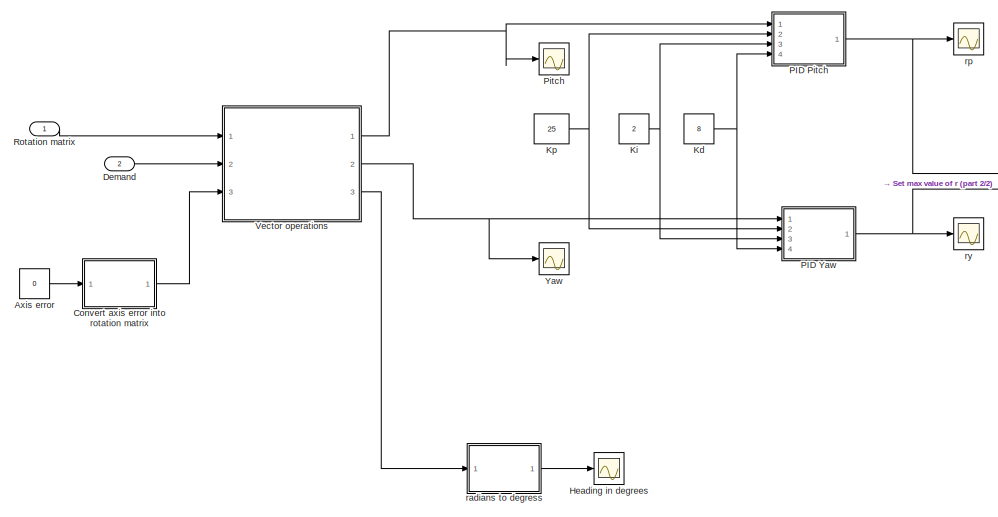
[diagram: Controller  - part 1/2, left side, full height]
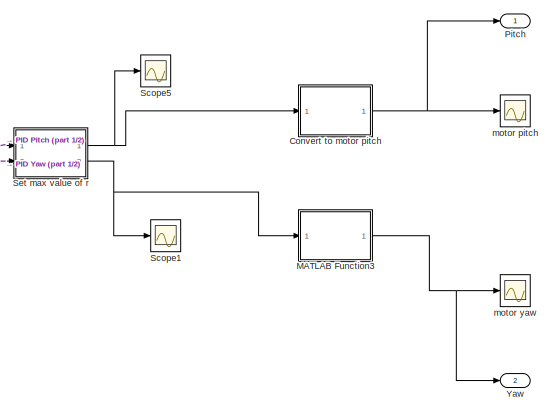
[diagram: Controller  - part 2/2, right side, full height]
BLOCK [SubSystem] Controller 
  FunctionWithSeparateData = off
  MaskHideContents = off
  MinAlgLoopOccurrences = off
  Opaque = off
  Ports = [2, 2]
  PropExecContextOutsideSubsystem = off
  RTWSystemCode = Auto
  RequestExecContextInheritance = off
BLOCK [SubSystem] Controller / PID Pitch
  ErrorFcn = Stateflow.Translate.translate
  FunctionWithSeparateData = off
  MaskHideContents = off
  MinAlgLoopOccurrences = off
  Opaque = off
  PermitHierarchicalResolution = ExplicitOnly
  Ports = [4, 1]
  PropExecContextOutsideSubsystem = off
  RTWSystemCode = Auto
  RequestExecContextInheritance = off
  SFBlockType = MATLAB Function
  TreatAsAtomicUnit = on
BLOCK [Demux] Controller / PID Pitch/ Demux 
  Outputs = 1
  Ports = [1, 1]
BLOCK [S-Function] Controller / PID Pitch/ SFunction 
  EnableBusSupport = on
  FunctionName = sf_sfun
  PortCounts = [4 2]
  Ports = [4, 2]
  Tag = Stateflow S-Function rocket3 9
BLOCK [Terminator] Controller / PID Pitch/ Terminator 
BLOCK [Inport] Controller / PID Pitch/Kd
  IconDisplay = Port number
  Port = 4
BLOCK [Inport] Controller / PID Pitch/Ki
  IconDisplay = Port number
  Port = 3
BLOCK [Inport] Controller / PID Pitch/Kp
  IconDisplay = Port number
  Port = 2
BLOCK [Inport] Controller / PID Pitch/Pitch
  IconDisplay = Port number
BLOCK [Outport] Controller / PID Pitch/rp
  IconDisplay = Port number
BLOCK [SubSystem] Controller / PID Yaw
  ErrorFcn = Stateflow.Translate.translate
  FunctionWithSeparateData = off
  MaskHideContents = off
  MinAlgLoopOccurrences = off
  Opaque = off
  PermitHierarchicalResolution = ExplicitOnly
  Ports = [4, 1]
  PropExecContextOutsideSubsystem = off
  RTWSystemCode = Auto
  RequestExecContextInheritance = off
  SFBlockType = MATLAB Function
  TreatAsAtomicUnit = on
BLOCK [Demux] Controller / PID Yaw/ Demux 
  Outputs = 1
  Ports = [1, 1]
BLOCK [S-Function] Controller / PID Yaw/ SFunction 
  EnableBusSupport = on
  FunctionName = sf_sfun
  PortCounts = [4 2]
  Ports = [4, 2]
  Tag = Stateflow S-Function rocket3 15
BLOCK [Terminator] Controller / PID Yaw/ Terminator 
BLOCK [Inport] Controller / PID Yaw/Kd
  IconDisplay = Port number
  Port = 4
BLOCK [Inport] Controller / PID Yaw/Ki
  IconDisplay = Port number
  Port = 3
BLOCK [Inport] Controller / PID Yaw/Kp
  IconDisplay = Port number
  Port = 2
BLOCK [Inport] Controller / PID Yaw/Yaw
  IconDisplay = Port number
BLOCK [Outport] Controller / PID Yaw/ry
  IconDisplay = Port number
BLOCK [Constant] Controller /Axis error
  Value = 0
BLOCK [SubSystem] Controller /Convert axis error into rotation matrix
  ErrorFcn = Stateflow.Translate.translate
  FunctionWithSeparateData = off
  MaskHideContents = off
  MinAlgLoopOccurrences = off
  Opaque = off
  PermitHierarchicalResolution = ExplicitOnly
  Ports = [1, 1]
  PropExecContextOutsideSubsystem = off
  RTWSystemCode = Auto
  RequestExecContextInheritance = off
  SFBlockType = MATLAB Function
  TreatAsAtomicUnit = on
BLOCK [Demux] Controller /Convert axis error into rotation matrix/ Demux 
  Outputs = 1
  Ports = [1, 1]
BLOCK [S-Function] Controller /Convert axis error into rotation matrix/ SFunction 
  EnableBusSupport = on
  FunctionName = sf_sfun
  PortCounts = [1 2]
  Ports = [1, 2]
  Tag = Stateflow S-Function rocket3 5
BLOCK [Terminator] Controller /Convert axis error into rotation matrix/ Terminator 
BLOCK [Inport] Controller /Convert axis error into rotation matrix/e
  IconDisplay = Port number
BLOCK [Outport] Controller /Convert axis error into rotation matrix/eR
  IconDisplay = Port number
BLOCK [SubSystem] Controller /Convert to motor pitch
  ErrorFcn = Stateflow.Translate.translate
  FunctionWithSeparateData = off
  MaskHideContents = off
  MinAlgLoopOccurrences = off
  Opaque = off
  PermitHierarchicalResolution = ExplicitOnly
  Ports = [1, 1]
  PropExecContextOutsideSubsystem = off
  RTWSystemCode = Auto
  RequestExecContextInheritance = off
  SFBlockType = MATLAB Function
  TreatAsAtomicUnit = on
BLOCK [Demux] Controller /Convert to motor pitch/ Demux 
  Outputs = 1
  Ports = [1, 1]
BLOCK [S-Function] Controller /Convert to motor pitch/ SFunction 
  EnableBusSupport = on
  FunctionName = sf_sfun
  PortCounts = [1 2]
  Ports = [1, 2]
  Tag = Stateflow S-Function rocket3 12
BLOCK [Terminator] Controller /Convert to motor pitch/ Terminator 
BLOCK [Outport] Controller /Convert to motor pitch/pitch
  IconDisplay = Port number
BLOCK [Inport] Controller /Convert to motor pitch/r
  IconDisplay = Port number
BLOCK [Inport] Controller /Demand
  IconDisplay = Port number
  Port = 2
BLOCK [Scope] Controller /Heading in degrees
  DataFormat = StructureWithTime
  Floating = off
  NumInputPorts = 1
  Ports = [1]
  SampleTime = 0
  SaveName = ScopeData6
  ShowLegends = off
  TimeRange = 5
  YMax = 9.5
  YMin = 0
BLOCK [Constant] Controller /Kd
  SampleTime = 0.01
  Value = 8
BLOCK [Constant] Controller /Ki
  SampleTime = 0.01
  Value = 2
BLOCK [Constant] Controller /Kp
  SampleTime = 0.01
  Value = 25
BLOCK [SubSystem] Controller /MATLAB Function3
  ErrorFcn = Stateflow.Translate.translate
  FunctionWithSeparateData = off
  MaskHideContents = off
  MinAlgLoopOccurrences = off
  Opaque = off
  PermitHierarchicalResolution = ExplicitOnly
  Ports = [1, 1]
  PropExecContextOutsideSubsystem = off
  RTWSystemCode = Auto
  RequestExecContextInheritance = off
  SFBlockType = MATLAB Function
  TreatAsAtomicUnit = on
BLOCK [Demux] Controller /MATLAB Function3/ Demux 
  Outputs = 1
  Ports = [1, 1]
BLOCK [S-Function] Controller /MATLAB Function3/ SFunction 
  EnableBusSupport = on
  FunctionName = sf_sfun
  PortCounts = [1 2]
  Ports = [1, 2]
  Tag = Stateflow S-Function rocket3 13
BLOCK [Terminator] Controller /MATLAB Function3/ Terminator 
BLOCK [Inport] Controller /MATLAB Function3/r
  IconDisplay = Port number
BLOCK [Outport] Controller /MATLAB Function3/yaw
  IconDisplay = Port number
BLOCK [Outport] Controller /Pitch
  IconDisplay = Port number
BLOCK [Scope] Controller /Pitch 
  DataFormat = StructureWithTime
  Floating = off
  NumInputPorts = 1
  Ports = [1]
  SampleTime = 0
  SaveName = ScopeData29
  ShowLegends = off
  YMax = 0.045
  YMin = -0.015
BLOCK [Inport] Controller /Rotation matrix
  IconDisplay = Port number
BLOCK [Scope] Controller /Scope1
  DataFormat = StructureWithTime
  Floating = off
  NumInputPorts = 1
  Ports = [1]
  SampleTime = 0
  SaveName = ScopeData18
  ShowLegends = off
  YMax = 9.5
  YMin = 0.5
  ZoomMode = yonly
BLOCK [Scope] Controller /Scope5
  DataFormat = StructureWithTime
  Floating = off
  NumInputPorts = 1
  Ports = [1]
  SampleTime = 0
  SaveName = ScopeData17
  ShowLegends = off
  YMax = 9.5
  YMin = 0.5
  ZoomMode = yonly
BLOCK [SubSystem] Controller /Set max value of r
  ErrorFcn = Stateflow.Translate.translate
  FunctionWithSeparateData = off
  MaskHideContents = off
  MinAlgLoopOccurrences = off
  Opaque = off
  PermitHierarchicalResolution = ExplicitOnly
  Ports = [2, 2]
  PropExecContextOutsideSubsystem = off
  RTWSystemCode = Auto
  RequestExecContextInheritance = off
  SFBlockType = MATLAB Function
  TreatAsAtomicUnit = on
BLOCK [Demux] Controller /Set max value of r/ Demux 
  Outputs = 1
  Ports = [1, 1]
BLOCK [S-Function] Controller /Set max value of r/ SFunction 
  EnableBusSupport = on
  FunctionName = sf_sfun
  PortCounts = [2 3]
  Ports = [2, 3]
  Tag = Stateflow S-Function rocket3 16
BLOCK [Terminator] Controller /Set max value of r/ Terminator 
BLOCK [Inport] Controller /Set max value of r/rp
  IconDisplay = Port number
BLOCK [Outport] Controller /Set max value of r/rp2
  IconDisplay = Port number
BLOCK [Inport] Controller /Set max value of r/ry
  IconDisplay = Port number
  Port = 2
BLOCK [Outport] Controller /Set max value of r/ry2
  IconDisplay = Port number
  Port = 2
BLOCK [SubSystem] Controller /Vector operations
  ErrorFcn = Stateflow.Translate.translate
  FunctionWithSeparateData = off
  MaskHideContents = off
  MinAlgLoopOccurrences = off
  Opaque = off
  PermitHierarchicalResolution = ExplicitOnly
  Ports = [3, 3]
  PropExecContextOutsideSubsystem = off
  RTWSystemCode = Auto
  RequestExecContextInheritance = off
  SFBlockType = MATLAB Function
  TreatAsAtomicUnit = on
BLOCK [Demux] Controller /Vector operations/ Demux 
  Outputs = 1
  Ports = [1, 1]
BLOCK [S-Function] Controller /Vector operations/ SFunction 
  EnableBusSupport = on
  FunctionName = sf_sfun
  PortCounts = [3 4]
  Ports = [3, 4]
  Tag = Stateflow S-Function rocket3 11
BLOCK [Terminator] Controller /Vector operations/ Terminator 
BLOCK [Inport] Controller /Vector operations/D
  IconDisplay = Port number
  Port = 2
BLOCK [Outport] Controller /Vector operations/Heading
  IconDisplay = Port number
  Port = 3
BLOCK [Inport] Controller /Vector operations/M
  IconDisplay = Port number
BLOCK [Outport] Controller /Vector operations/Pitch
  IconDisplay = Port number
BLOCK [Outport] Controller /Vector operations/Yaw
  IconDisplay = Port number
  Port = 2
BLOCK [Inport] Controller /Vector operations/eR
  IconDisplay = Port number
  Port = 3
BLOCK [Outport] Controller /Yaw
  IconDisplay = Port number
  Port = 2
BLOCK [Scope] Controller /Yaw 
  DataFormat = StructureWithTime
  Floating = off
  NumInputPorts = 1
  Ports = [1]
  SampleTime = 0
  SaveName = ScopeData30
  ShowLegends = off
  YMax = 0.71
  YMin = 0.625
BLOCK [Scope] Controller /motor pitch
  DataFormat = StructureWithTime
  Floating = off
  NumInputPorts = 1
  Ports = [1]
  SampleTime = 0
  SaveName = ScopeData24
  ShowLegends = off
BLOCK [Scope] Controller /motor yaw
  DataFormat = StructureWithTime
  Floating = off
  NumInputPorts = 1
  Ports = [1]
  SampleTime = 0
  SaveName = ScopeData25
  ShowLegends = off
  YMax = 3.5e-05
  YMin = -6e-05
BLOCK [SubSystem] Controller /radians to degress 
  ErrorFcn = Stateflow.Translate.translate
  FunctionWithSeparateData = off
  MaskHideContents = off
  MinAlgLoopOccurrences = off
  Opaque = off
  PermitHierarchicalResolution = ExplicitOnly
  Ports = [1, 1]
  PropExecContextOutsideSubsystem = off
  RTWSystemCode = Auto
  RequestExecContextInheritance = off
  SFBlockType = MATLAB Function
  TreatAsAtomicUnit = on
BLOCK [Demux] Controller /radians to degress / Demux 
  Outputs = 1
  Ports = [1, 1]
BLOCK [S-Function] Controller /radians to degress / SFunction 
  EnableBusSupport = on
  FunctionName = sf_sfun
  PortCounts = [1 2]
  Ports = [1, 2]
  Tag = Stateflow S-Function rocket3 3
BLOCK [Terminator] Controller /radians to degress / Terminator 
BLOCK [Inport] Controller /radians to degress /h1
  IconDisplay = Port number
BLOCK [Outport] Controller /radians to degress /h2
  IconDisplay = Port number
BLOCK [Scope] Controller /rp 
  DataFormat = StructureWithTime
  Floating = off
  NumInputPorts = 1
  Ports = [1]
  SampleTime = 0
  SaveName = ScopeData15
  ShowLegends = off
  YMax = 3.5
  YMin = -7
BLOCK [Scope] Controller /ry
  DataFormat = StructureWithTime
  Floating = off
  NumInputPorts = 1
  Ports = [1]
  SampleTime = 0
  SaveName = ScopeData16
  ShowLegends = off
  YMax = 7
  YMin = -3
BLOCK [SubSystem] Convert rates into rotation matrix
  FunctionWithSeparateData = off
  MaskHideContents = off
  MinAlgLoopOccurrences = off
  Opaque = off
  Ports = [1, 1]
  PropExecContextOutsideSubsystem = off
  RTWSystemCode = Auto
  RequestExecContextInheritance = off
BLOCK [Inport] Convert rates into rotation matrix/Angular rates
  IconDisplay = Port number
BLOCK [Constant] Convert rates into rotation matrix/Constant
  SampleTime = 0.01
  Value = [0;0;0]
BLOCK [Scope] Convert rates into rotation matrix/Gyro data
  DataFormat = StructureWithTime
  Floating = off
  LegendLocations = 0.78626      0.8033     0.15262     0.11637
  LimitDataPoints = off
  NumInputPorts = 1
  Ports = [1]
  SampleTime = 0
  SaveName = ScopeData19
  ShowLegends = on
BLOCK [Scope] Convert rates into rotation matrix/Gyro filter
  DataFormat = StructureWithTime
  Floating = off
  LimitDataPoints = off
  NumInputPorts = 1
  Ports = [1]
  SampleTime = 0
  SaveName = ScopeData13
  ShowLegends = on
BLOCK [Scope] Convert rates into rotation matrix/Gyro intrnal output
  DataFormat = StructureWithTime
  Floating = off
  LimitDataPoints = off
  NumInputPorts = 1
  Ports = [1]
  SampleTime = 0
  SaveName = ScopeData23
  ShowLegends = on
BLOCK [SubSystem] Convert rates into rotation matrix/Lowpass Filter
  CopyFcn = fdesignblkfcn(gcbh, {'CopyFcn'});
  DialogController = fdesignblkfcn
  FunctionWithSeparateData = off
  InitFcn = fdesignblkfcn(gcbh, {'InitFcn'});
  MaskHideContents = off
  MinAlgLoopOccurrences = off
  Opaque = off
  Ports = [1, 1]
  PropExecContextOutsideSubsystem = off
  RTWSystemCode = Auto
  RequestExecContextInheritance = off
  UserDataPersistent = on
BLOCK [Reference] Convert rates into rotation matrix/Lowpass Filter/Generated Filter Block  REF=dsparch4/Digital Filter
  AllPoleFiltStruct = Direct form
  BiQuadCoeffs = [1 0.3 0.4 1 0.1 0.2]
  CoeffSource = Specify via dialog
  DenCoeffs = [1 0.1]
  FIRFiltStruct = Direct form
  FiltPerSampPopup = One filter per frame
  FilterSource = Specify via dialog
  IC = 0
  ICden = 0
  ICnum = 0
  IIRFiltStruct = Direct form II transposed
  InputProcessing = Elements as channels (sample based)
  LatticeCoeffs = [0.2 0.4]
  LockScale = off
  NumCoeffs = [-0.0086576118436237099 -0.029483359899297831 -0.031006311548444312 0.043288171023261351 0.1964326006000513 0.33033263240797889 0.33033263240797889 0.1964326006000513 0.043288171023261351 -0.031006311548444312 -0.029483359899297831 -0.0086576118436237099]
  Ports = [1, 1]
  ScaleValues = 1
  SourceBlock = dsparch4/Digital Filter
  SourceType = Digital Filter
  Tag = BlockMethodSubSystem
  TypePopup = FIR (all zeros)
  UserDataPersistent = on
  accumFracLength = 30
  accumMode = Same as product output
  accumWordLength = 32
  additionalParams = off
  allowOverrides = on
  denIgnore = on
  dfiltObjectName = dfilt.dffir([1 2 1])
  firstCoeffFracLength = 15
  firstCoeffMode = Same word length as input
  firstCoeffWordLength = 16
  memoryFracLength = 15
  memoryMode = Same as accumulator
  memoryWordLength = 16
  multiplicandFracLength = 30
  multiplicandMode = Same as output
  multiplicandWordLength = 32
  outputFracLength = 15
  outputMode = Same as accumulator
  outputWordLength = 16
  overflowMode = off
  prodOutputFracLength = 30
  prodOutputMode = Same as input
  prodOutputWordLength = 32
  roundingMode = Floor
  scaleValueFracLength = 14
  secondCoeffFracLength = 15
  secondCoeffMode = Same as numerator
  secondCoeffWordLength = 16
  showAcc = off
  showCoeff = off
  showMem = off
  showMpy = off
  showOut = off
  stageIOMode = Same as input
  stageIOWordLength = 16
  stageInFracLength = 15
  stageOutFracLength = 15
  tapSumFracLength = 30
  tapSumMode = Same as input
  tapSumWordLength = 32
  thirdCoeffFracLength = 15
  thirdCoeffMode = Same as input
  thirdCoeffWordLength = 16
BLOCK [Inport] Convert rates into rotation matrix/Lowpass Filter/In
  IconDisplay = Port number
BLOCK [Outport] Convert rates into rotation matrix/Lowpass Filter/Out
  IconDisplay = Port number
BLOCK [RateTransition] Convert rates into rotation matrix/Rate Transition1
  Deterministic = off
  OutPortSampleTime = 0.01
BLOCK [Outport] Convert rates into rotation matrix/Rotation matric
  IconDisplay = Port number
BLOCK [Display] Convert rates into rotation matrix/Rotation matrix
  Decimation = 1
  Ports = [1]
BLOCK [SubSystem] Convert rates into rotation matrix/Update rotation matrix
  ErrorFcn = Stateflow.Translate.translate
  FunctionWithSeparateData = off
  MaskHideContents = off
  MinAlgLoopOccurrences = off
  Opaque = off
  PermitHierarchicalResolution = ExplicitOnly
  Ports = [1, 1]
  PropExecContextOutsideSubsystem = off
  RTWSystemCode = Auto
  RequestExecContextInheritance = off
  SFBlockType = MATLAB Function
  TreatAsAtomicUnit = on
BLOCK [Demux] Convert rates into rotation matrix/Update rotation matrix/ Demux 
  Outputs = 1
  Ports = [1, 1]
BLOCK [S-Function] Convert rates into rotation matrix/Update rotation matrix/ SFunction 
  EnableBusSupport = on
  FunctionName = sf_sfun
  PortCounts = [1 2]
  Ports = [1, 2]
  Tag = Stateflow S-Function rocket3 18
BLOCK [Terminator] Convert rates into rotation matrix/Update rotation matrix/ Terminator 
BLOCK [Outport] Convert rates into rotation matrix/Update rotation matrix/R2
  IconDisplay = Port number
BLOCK [Inport] Convert rates into rotation matrix/Update rotation matrix/w
  IconDisplay = Port number
BLOCK [ZeroOrderHold] Convert rates into rotation matrix/Zero-Order Hold
  SampleTime = 0.001
BLOCK [SubSystem] Demand
  FunctionWithSeparateData = off
  MaskHideContents = off
  MinAlgLoopOccurrences = off
  Opaque = off
  Ports = [0, 1]
  PropExecContextOutsideSubsystem = off
  RTWSystemCode = Auto
  RequestExecContextInheritance = off
BLOCK [Scope] Demand 
  DataFormat = StructureWithTime
  Floating = off
  NumInputPorts = 1
  Ports = [1]
  SampleTime = 5
  SaveName = ScopeData8
  ShowLegends = off
  YMax = 0.09
  YMin = -0.1
  ZoomMode = yonly
BLOCK [Sum] Demand/Add
  InputSameDT = off
  OutDataTypeStr = Inherit: Inherit via internal rule
  Ports = [2, 1]
  SaturateOnIntegerOverflow = off
BLOCK [Constant] Demand/Constant
  Value = [45;10]
BLOCK [Outport] Demand/Out1
  IconDisplay = Port number
BLOCK [Sin] Demand/Sine Wave
  Amplitude = [0;0]
  Frequency = 5
  Phase = pi/2
  Ports = [0, 1]
  SampleTime = 0.01
  VectorParams1D = off
BLOCK [Scope] Disturbance
  DataFormat = StructureWithTime
  Floating = off
  LimitDataPoints = off
  NumInputPorts = 1
  Ports = [1]
  SampleTime = 5
  SaveName = ScopeData10
  ShowLegends = off
  YMax = 0.6
  YMin = -0.7
BLOCK [SubSystem] Disturbances
  FunctionWithSeparateData = off
  MaskHideContents = off
  MinAlgLoopOccurrences = off
  Opaque = off
  Ports = [0, 1]
  PropExecContextOutsideSubsystem = off
  RTWSystemCode = Auto
  RequestExecContextInheritance = off
BLOCK [Mux] Disturbances/Mux
  DisplayOption = bar
  Inputs = 3
  Ports = [3, 1]
BLOCK [Outport] Disturbances/Out1
  IconDisplay = Port number
BLOCK [RandomNumber] Disturbances/Pitch noise
  SampleTime = 0.1
  Variance = 0.00
  VectorParams1D = off
BLOCK [RateTransition] Disturbances/Rate Transition
  Deterministic = off
  OutPortSampleTimeOpt = Inherit
BLOCK [RandomNumber] Disturbances/Roll noise
  SampleTime = 0.1
  Seed = 1
  Variance = 0
  VectorParams1D = off
BLOCK [Step] Disturbances/Step1
  After = [-2;0.02;2]
  Before = [0;0;0]
  SampleTime = 0
  Time = [0.5;0.5;0.5]
  VectorParams1D = off
BLOCK [Step] Disturbances/Step2
  After = [2;-0.02;-2]
  Before = [0;0;0]
  SampleTime = 0
  Time = [0.5;0.5;0.5]
  VectorParams1D = off
BLOCK [Sum] Disturbances/Sum
  IconShape = round
  InputSameDT = off
  Inputs = |++
  OutDataTypeStr = Inherit: Inherit via internal rule
  Ports = [2, 1]
  SaturateOnIntegerOverflow = off
BLOCK [Sum] Disturbances/Sum1
  IconShape = round
  InputSameDT = off
  Inputs = |+++
  OutDataTypeStr = Inherit: Inherit via internal rule
  Ports = [3, 1]
  SaturateOnIntegerOverflow = off
BLOCK [RandomNumber] Disturbances/Yaw noise
  SampleTime = 0.1
  Seed = 2
  Variance = 0.00
  VectorParams1D = off
BLOCK [Constant] Disturbances/const
  Value = [0;0;0]
  VectorParams1D = off
BLOCK [SubSystem] Euler angle analysis
  FunctionWithSeparateData = off
  MaskHideContents = off
  MinAlgLoopOccurrences = off
  Opaque = off
  Ports = [1]
  PropExecContextOutsideSubsystem = off
  RTWSystemCode = Auto
  RequestExecContextInheritance = off
BLOCK [SubSystem] Euler angle analysis/Convert angular rates in body frame to euler angles
  ErrorFcn = Stateflow.Translate.translate
  FunctionWithSeparateData = off
  MaskHideContents = off
  MinAlgLoopOccurrences = off
  Opaque = off
  PermitHierarchicalResolution = ExplicitOnly
  Ports = [2, 1]
  PropExecContextOutsideSubsystem = off
  RTWSystemCode = Auto
  RequestExecContextInheritance = off
  SFBlockType = MATLAB Function
  TreatAsAtomicUnit = on
BLOCK [Demux] Euler angle analysis/Convert angular rates in body frame to euler angles/ Demux 
  Outputs = 1
  Ports = [1, 1]
BLOCK [S-Function] Euler angle analysis/Convert angular rates in body frame to euler angles/ SFunction 
  EnableBusSupport = on
  FunctionName = sf_sfun
  PortCounts = [2 2]
  Ports = [2, 2]
  Tag = Stateflow S-Function rocket3 10
BLOCK [Terminator] Euler angle analysis/Convert angular rates in body frame to euler angles/ Terminator 
BLOCK [Inport] Euler angle analysis/Convert angular rates in body frame to euler angles/a
  IconDisplay = Port number
  Port = 2
BLOCK [Outport] Euler angle analysis/Convert angular rates in body frame to euler angles/e
  IconDisplay = Port number
BLOCK [Inport] Euler angle analysis/Convert angular rates in body frame to euler angles/r1
  IconDisplay = Port number
BLOCK [DiscreteIntegrator] Euler angle analysis/Discrete-Time Integrator for euler angles
  ICPrevOutput = DiscIntNeverNeededParam
  ICPrevScaledInput = DiscIntNeverNeededParam
  Ports = [1, 1]
  SampleTime = 0.01
  gainval = 1
BLOCK [Scope] Euler angle analysis/Euler angles
  DataFormat = StructureWithTime
  Floating = off
  LegendLocations = 0.81074     0.79992      0.1549     0.11637
  NumInputPorts = 1
  Ports = [1]
  SampleTime = 0
  SaveName = ScopeData3
  ShowLegends = on
  YMax = 0.9
  YMin = 0.05
BLOCK [Scope] Euler angle analysis/Euler rates 
  DataFormat = StructureWithTime
  Floating = off
  NumInputPorts = 1
  Ports = [1]
  SampleTime = 0
  SaveName = ScopeData28
  ShowLegends = on
BLOCK [Inport] Euler angle analysis/In1
  IconDisplay = Port number
BLOCK [ZeroOrderHold] Euler angle analysis/Zero-Order Hold1
  SampleTime = 0.01
BLOCK [Scope] Thrust curve
  DataFormat = StructureWithTime
  Floating = off
  NumInputPorts = 1
  Ports = [1]
  SampleTime = 0
  SaveName = ScopeData7
  ShowLegends = off
  YMax = 0.09
  YMin = -0.1
  ZoomMode = yonly
BLOCK [SubSystem] Thurst curve 
  FunctionWithSeparateData = off
  MaskHideContents = off
  MinAlgLoopOccurrences = off
  Opaque = off
  Ports = [0, 1]
  PropExecContextOutsideSubsystem = off
  RTWSystemCode = Auto
  RequestExecContextInheritance = off
BLOCK [Step] Thurst curve /Burn time
  After = [0;0;0]
  Before = [0;0;0]
  SampleTime = 0
  Time = [0;5; 0]
  VectorParams1D = off
BLOCK [Outport] Thurst curve /Out1
  IconDisplay = Port number
BLOCK [Sum] Thurst curve /Sum2
  IconShape = round
  InputSameDT = off
  Inputs = |++
  OutDataTypeStr = Inherit: Inherit via internal rule
  Ports = [2, 1]
  SaturateOnIntegerOverflow = off
BLOCK [Constant] Thurst curve /Thrust
  Value = [0;22;0]
  VectorParams1D = off
BLOCK [Scope] Translational position
  DataFormat = StructureWithTime
  Floating = off
  LimitDataPoints = off
  NumInputPorts = 1
  Ports = [1]
  SampleTime = 0
  ShowLegends = on
  ZoomMode = yonly
BLOCK [Scope] Translational velocity
  DataFormat = StructureWithTime
  Floating = off
  LimitDataPoints = off
  NumInputPorts = 1
  Ports = [1]
  SampleTime = 0
  SaveName = ScopeData1
  ShowLegends = off
ANNOTATION Body subsystem: [433353 -160 147; -160 9482 62; 147 62 433391]
ANNOTATION Demand: the default demand is to head in the directions of J the demand is a 2D vector containing the containing alpha and beta (think spherical coords) for the unit vector we want to go in, alpha and beta are angles in degree alpha is a bearing beta is the angle from vertical
NET Actuator lag/Angular velocity gimbal :1 -> Actuator lag/convert a discrete position signal into a continous position :2, Actuator lag/convert a discrete position signal into a continous position:2
LINE Actuator lag/Derivative1:1 -> Actuator lag/Mux1:2
LINE Actuator lag/Derivative3:1 -> Actuator lag/Mux3:2
LINE Actuator lag/In1:1 -> Actuator lag/Rate Transition2:1
NET Actuator lag/In2:1 -> Actuator lag/Rate Transition1:1, Actuator lag/discrete:1
NET Actuator lag/Integrator1:1 -> Actuator lag/Derivative1:1, Actuator lag/Mux1:1, Actuator lag/continous1:1, Actuator lag/convert a discrete position signal into a continous position:3
NET Actuator lag/Integrator:1 -> Actuator lag/Derivative3:1, Actuator lag/Mux3:1, Actuator lag/continous:1, Actuator lag/convert a discrete position signal into a continous position :3
LINE Actuator lag/Mux1:1 -> Actuator lag/Out1:1
LINE Actuator lag/Mux3:1 -> Actuator lag/Out2:1
LINE Actuator lag/Rate Transition1:1 -> Actuator lag/convert a discrete position signal into a continous position :1
LINE Actuator lag/Rate Transition2:1 -> Actuator lag/convert a discrete position signal into a continous position:1
LINE Actuator lag/acceleration 1:1 -> Actuator lag/Mux1:3
LINE Actuator lag/acceleration :1 -> Actuator lag/Mux3:3
LINE Actuator lag/convert a discrete position signal into a continous position :1 -> Actuator lag/Integrator:1
LINE Actuator lag/convert a discrete position signal into a continous position:1 -> Actuator lag/Integrator1:1
LINE Actuator lag:1 -> Body subsystem:3
LINE Actuator lag:2 -> Body subsystem:4
NET Body subsystem/Calculate air resistance:1 -> Body subsystem/Air resistance :1, Body subsystem/Air resistance:1
LINE Body subsystem/Demux:1 -> Body subsystem/XY Graph of motor position relative to body system:2
LINE Body subsystem/Demux:3 -> Body subsystem/XY Graph of motor position relative to body system:1
LINE Body subsystem/Disturbance force:1 -> Body subsystem/Disturbance Actuator:1
LINE Body subsystem/Joint Sensor1:1 -> Body subsystem/Yaw :1
LINE Body subsystem/Joint Sensor:1 -> Body subsystem/Pitch :1
LINE Body subsystem/Motor Sensor:1 -> Body subsystem/Position converted world system to main body system :1
LINE Body subsystem/Motor force:1 -> Body subsystem/Motor thrust:1
LINE Body subsystem/Pitch:1 -> Body subsystem/body pitch Actuator:1
LINE Body subsystem/Position converted world system to main body system :1 -> Body subsystem/Sum2:2
NET Body subsystem/Sensor body:1 -> Body subsystem/Position body:1, Body subsystem/Sum2:1
NET Body subsystem/Sensor body:2 -> Body subsystem/Calculate air resistance:1, Body subsystem/Velocity body:1
LINE Body subsystem/Sensor body:3 -> Body subsystem/Gyro:1
LINE Body subsystem/Sensor world:1 -> Body subsystem/Position:1
LINE Body subsystem/Sensor world:2 -> Body subsystem/Velocity:1
LINE Body subsystem/Sensor world:3 -> Body subsystem/Angular velocities:1
LINE Body subsystem/Sensor world:4 -> Body subsystem/position from world to main body 1:1
LINE Body subsystem/Step1:1 -> Body subsystem/Sum1:1
LINE Body subsystem/Step2:1 -> Body subsystem/Sum1:2
NET Body subsystem/Sum1:1 -> Body subsystem/Roll  Actuator:1, Body subsystem/Scope7:1
LINE Body subsystem/Sum2:1 -> Body subsystem/Demux:1
LINE Body subsystem/Vector operations:1 -> Body subsystem/True Heading in degrees:1
LINE Body subsystem/Vector operations:2 -> Body subsystem/True Pitch in degrees1:1
LINE Body subsystem/Vector operations:3 -> Body subsystem/True Yaw in degrees2:1
LINE Body subsystem/Yaw:1 -> Body subsystem/body yaw Actuator:1
NET Body subsystem/position from world to main body 1:1 -> Body subsystem/Position converted world system to main body system :2, Body subsystem/Rotation matrix:1, Body subsystem/Vector operations:1
LINE Body subsystem:1 -> Translational position:1
LINE Body subsystem:2 -> Translational velocity:1
NET Body subsystem:3 -> Angular velocity:1, Convert rates into rotation matrix:1, Euler angle analysis:1
NET Controller / PID Pitch:1 -> Controller /Set max value of r:1, Controller /rp :1
NET Controller / PID Yaw:1 -> Controller /Set max value of r:2, Controller /ry:1
LINE Controller /Axis error:1 -> Controller /Convert axis error into rotation matrix:1
LINE Controller /Convert axis error into rotation matrix:1 -> Controller /Vector operations:3
NET Controller /Convert to motor pitch:1 -> Controller /Pitch:1, Controller /motor pitch:1
LINE Controller /Demand:1 -> Controller /Vector operations:2
NET Controller /Kd:1 -> Controller / PID Pitch:4, Controller / PID Yaw:4
NET Controller /Ki:1 -> Controller / PID Pitch:3, Controller / PID Yaw:3
NET Controller /Kp:1 -> Controller / PID Pitch:2, Controller / PID Yaw:2
NET Controller /MATLAB Function3:1 -> Controller /Yaw:1, Controller /motor yaw:1
LINE Controller /Rotation matrix:1 -> Controller /Vector operations:1
NET Controller /Set max value of r:1 -> Controller /Convert to motor pitch:1, Controller /Scope5:1
NET Controller /Set max value of r:2 -> Controller /MATLAB Function3:1, Controller /Scope1:1
NET Controller /Vector operations:1 -> Controller / PID Pitch:1, Controller /Pitch :1
NET Controller /Vector operations:2 -> Controller / PID Yaw:1, Controller /Yaw :1
LINE Controller /Vector operations:3 -> Controller /radians to degress :1
LINE Controller /radians to degress :1 -> Controller /Heading in degrees:1
LINE Controller :1 -> Actuator lag:1
LINE Controller :2 -> Actuator lag:2
LINE Convert rates into rotation matrix/Angular rates:1 -> Convert rates into rotation matrix/Zero-Order Hold:1
NET Convert rates into rotation matrix/Lowpass Filter:1 -> Convert rates into rotation matrix/Gyro filter:1, Convert rates into rotation matrix/Rate Transition1:1
NET Convert rates into rotation matrix/Rate Transition1:1 -> Convert rates into rotation matrix/Gyro data:1, Convert rates into rotation matrix/Update rotation matrix:1
NET Convert rates into rotation matrix/Update rotation matrix:1 -> Convert rates into rotation matrix/Rotation matric:1, Convert rates into rotation matrix/Rotation matrix:1
NET Convert rates into rotation matrix/Zero-Order Hold:1 -> Convert rates into rotation matrix/Gyro intrnal output:1, Convert rates into rotation matrix/Lowpass Filter:1
LINE Convert rates into rotation matrix:1 -> Controller :1
LINE Demand/Add:1 -> Demand/Out1:1
LINE Demand/Constant:1 -> Demand/Add:2
LINE Demand/Sine Wave:1 -> Demand/Add:1
NET Demand:1 -> Controller :2, Demand :1
LINE Disturbances/Mux:1 -> Disturbances/Rate Transition:1
LINE Disturbances/Pitch noise:1 -> Disturbances/Mux:1
LINE Disturbances/Rate Transition:1 -> Disturbances/Sum:1
LINE Disturbances/Roll noise:1 -> Disturbances/Mux:2
LINE Disturbances/Step1:1 -> Disturbances/Sum1:2
LINE Disturbances/Step2:1 -> Disturbances/Sum1:3
LINE Disturbances/Sum1:1 -> Disturbances/Sum:2
LINE Disturbances/Sum:1 -> Disturbances/Out1:1
LINE Disturbances/Yaw noise:1 -> Disturbances/Mux:3
LINE Disturbances/const:1 -> Disturbances/Sum1:1
NET Disturbances:1 -> Body subsystem:1, Disturbance:1
NET Euler angle analysis/Convert angular rates in body frame to euler angles:1 -> Euler angle analysis/Discrete-Time Integrator for euler angles:1, Euler angle analysis/Euler rates :1
NET Euler angle analysis/Discrete-Time Integrator for euler angles:1 -> Euler angle analysis/Convert angular rates in body frame to euler angles:2, Euler angle analysis/Euler angles:1
LINE Euler angle analysis/In1:1 -> Euler angle analysis/Zero-Order Hold1:1
LINE Euler angle analysis/Zero-Order Hold1:1 -> Euler angle analysis/Convert angular rates in body frame to euler angles:1
LINE Thurst curve /Burn time:1 -> Thurst curve /Sum2:2
LINE Thurst curve /Sum2:1 -> Thurst curve /Out1:1
LINE Thurst curve /Thrust:1 -> Thurst curve /Sum2:1
NET Thurst curve :1 -> Body subsystem:2, Thrust curve:1
PLINE Body subsystem/Air resistance:RConn1 -- Body subsystem/Main rocket boby:RConn2
PLINE Body subsystem/Disturbance Actuator:RConn1 -- Body subsystem/Main rocket boby:LConn3
PLINE Body subsystem/Gimbal:LConn1 -- Body subsystem/Main rocket boby:LConn2
PLINE Body subsystem/Gimbal:LConn2 -- Body subsystem/body yaw Actuator:RConn1
PLINE Body subsystem/Gimbal:LConn3 -- Body subsystem/Joint Sensor:LConn1
PLINE Body subsystem/Gimbal:RConn1 -- Body subsystem/Gimbaled motor:RConn2
PLINE Body subsystem/Gimbal:RConn2 -- Body subsystem/body pitch Actuator:RConn1
PLINE Body subsystem/Gimbal:RConn3 -- Body subsystem/Joint Sensor1:LConn1
PLINE Body subsystem/Gimbaled motor:LConn1 -- Body subsystem/Motor thrust:RConn1
PLINE Body subsystem/Gimbaled motor:LConn2 -- Body subsystem/Motor Sensor:LConn1
PLINE Body subsystem/Ground:LConn1 -- Body subsystem/Machine Environment:RConn1
PLINE Body subsystem/Ground:RConn1 -- Body subsystem/Six-DoF:LConn1
PLINE Body subsystem/Main rocket boby:LConn1 -- Body subsystem/Six-DoF:RConn1
PLINE Body subsystem/Main rocket boby:LConn4 -- Body subsystem/Roll  Actuator:RConn1
PLINE Body subsystem/Main rocket boby:RConn1 -- Body subsystem/Sensor body:LConn1
PLINE Body subsystem/Main rocket boby:RConn3 -- Body subsystem/Sensor world:LConn1
note: NET lines group one-source signal fan-out (src -> all destinations, sorted); 1:1 wires keep LINE
